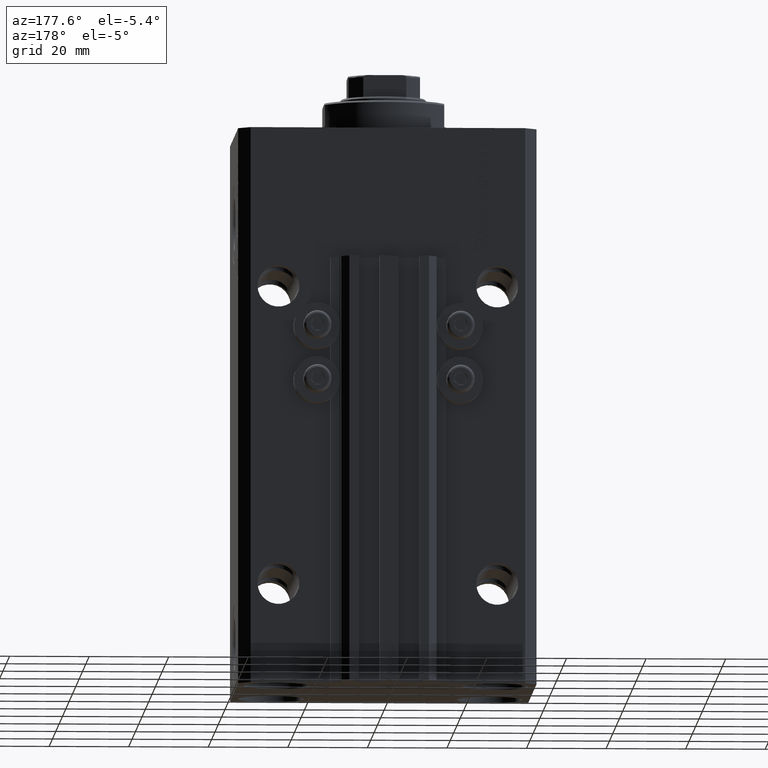
[diagram: clean part render]
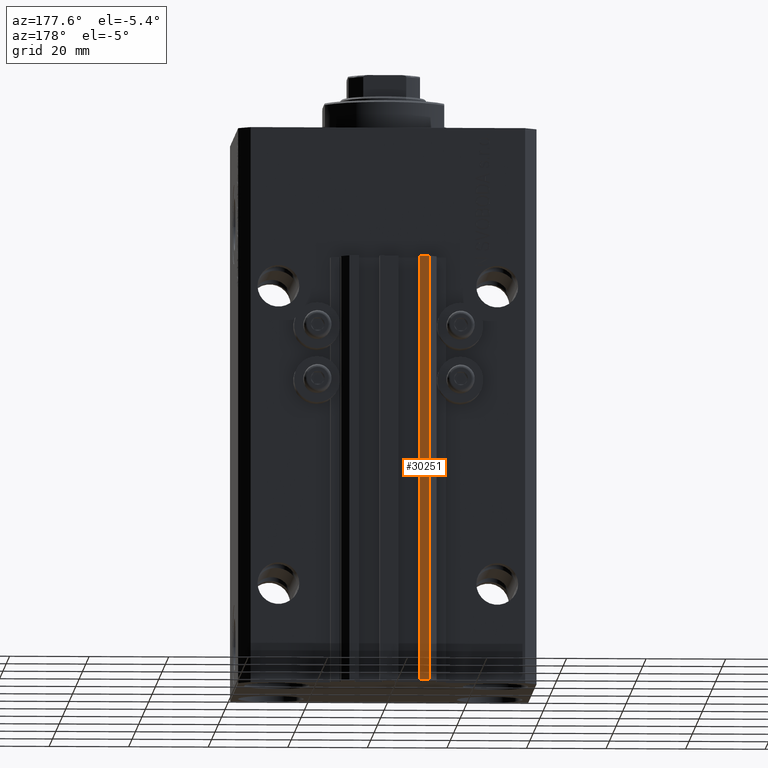
[diagram: same view with one face highlighted and labeled with its STEP entity id]
A machine part, auxiliary view. The second image highlights one B-rep face of the part: STEP entity #30251.
In plain terms, the highlighted planar face has unit normal (0, 1, 0).
Its self-contained STEP definition (entity closure, byte-faithful):
#670 = LINE ( 'NONE', #26357, #41276 ) ;
#1277 = DIRECTION ( 'NONE',  ( -1.000000000000000000, 0.000000000000000000, 0.000000000000000000 ) ) ;
#2873 = DIRECTION ( 'NONE',  ( 0.000000000000000000, 1.000000000000000000, -0.000000000000000000 ) ) ;
#3586 = ORIENTED_EDGE ( 'NONE', *, *, #44722, .T. ) ;
#5722 = VERTEX_POINT ( 'NONE', #33586 ) ;
#7997 = CARTESIAN_POINT ( 'NONE',  ( -10.00000000000000000, 35.50000000000000000, -33.00000000000000000 ) ) ;
#9725 = EDGE_CURVE ( 'NONE', #34883, #15233, #33575, .T. ) ;
#10861 = DIRECTION ( 'NONE',  ( 0.000000000000000000, 0.000000000000000000, 1.000000000000000000 ) ) ;
#11877 = AXIS2_PLACEMENT_3D ( 'NONE', #28802, #2873, #10861 ) ;
#14512 = FACE_OUTER_BOUND ( 'NONE', #37206, .T. ) ;
#15233 = VERTEX_POINT ( 'NONE', #31830 ) ;
#15819 = CARTESIAN_POINT ( 'NONE',  ( -7.650000000000000355, 35.50000000000000000, -140.0000000000000000 ) ) ;
#22012 = PLANE ( 'NONE',  #11877 ) ;
#22242 = DIRECTION ( 'NONE',  ( -1.000000000000000000, 0.000000000000000000, 0.000000000000000000 ) ) ;
#22287 = ORIENTED_EDGE ( 'NONE', *, *, #9725, .F. ) ;
#26340 = CARTESIAN_POINT ( 'NONE',  ( -7.650000000000000355, 35.50000000000000000, -140.0000000000000000 ) ) ;
#26357 = CARTESIAN_POINT ( 'NONE',  ( -7.650000000000000355, 35.50000000000000000, -33.00000000000000000 ) ) ;
#26775 = VECTOR ( 'NONE', #38163, 1000.000000000000000 ) ;
#27419 = EDGE_CURVE ( 'NONE', #5722, #37100, #29237, .T. ) ;
#27874 = ORIENTED_EDGE ( 'NONE', *, *, #31407, .F. ) ;
#28802 = CARTESIAN_POINT ( 'NONE',  ( -7.650000000000000355, 35.50000000000000000, -140.0000000000000000 ) ) ;
#29237 = LINE ( 'NONE', #32621, #44213 ) ;
#30251 = ADVANCED_FACE ( 'NONE', ( #14512 ), #22012, .T. ) ;
#31065 = LINE ( 'NONE', #15819, #36879 ) ;
#31407 = EDGE_CURVE ( 'NONE', #15233, #37100, #670, .T. ) ;
#31830 = CARTESIAN_POINT ( 'NONE',  ( -7.650000000000000355, 35.50000000000000000, -33.00000000000000000 ) ) ;
#32621 = CARTESIAN_POINT ( 'NONE',  ( -10.00000000000000000, 35.50000000000000000, -140.0000000000000000 ) ) ;
#33575 = LINE ( 'NONE', #26340, #26775 ) ;
#33586 = CARTESIAN_POINT ( 'NONE',  ( -10.00000000000000000, 35.50000000000000000, -140.0000000000000000 ) ) ;
#34883 = VERTEX_POINT ( 'NONE', #47887 ) ;
#36879 = VECTOR ( 'NONE', #1277, 1000.000000000000000 ) ;
#37100 = VERTEX_POINT ( 'NONE', #7997 ) ;
#37206 = EDGE_LOOP ( 'NONE', ( #27874, #22287, #3586, #38329 ) ) ;
#38163 = DIRECTION ( 'NONE',  ( 0.000000000000000000, 0.000000000000000000, 1.000000000000000000 ) ) ;
#38329 = ORIENTED_EDGE ( 'NONE', *, *, #27419, .T. ) ;
#41276 = VECTOR ( 'NONE', #22242, 1000.000000000000000 ) ;
#43745 = DIRECTION ( 'NONE',  ( 0.000000000000000000, 0.000000000000000000, 1.000000000000000000 ) ) ;
#44213 = VECTOR ( 'NONE', #43745, 1000.000000000000000 ) ;
#44722 = EDGE_CURVE ( 'NONE', #34883, #5722, #31065, .T. ) ;
#47887 = CARTESIAN_POINT ( 'NONE',  ( -7.650000000000000355, 35.50000000000000000, -140.0000000000000000 ) ) ;